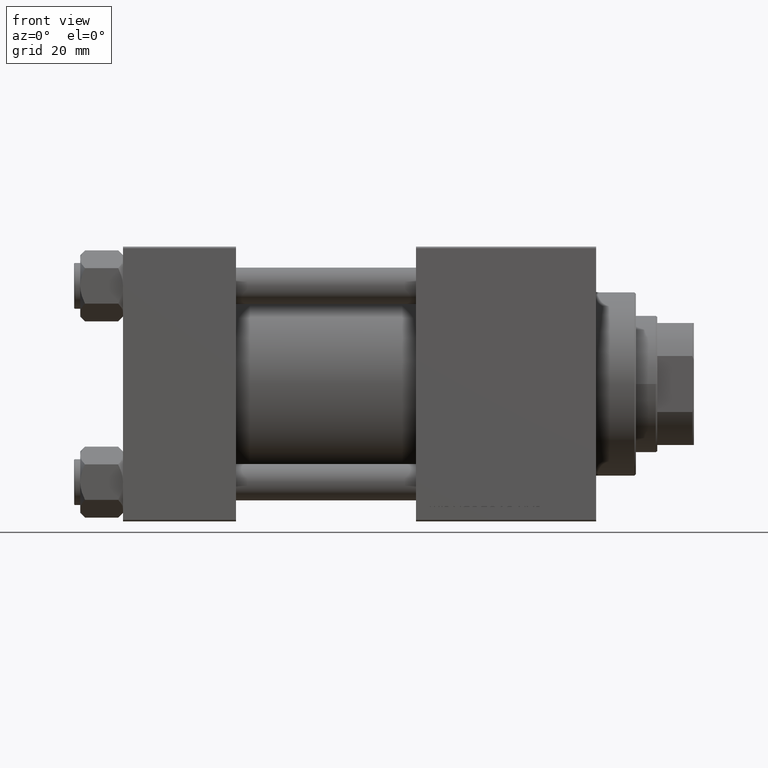
[diagram: clean part render]
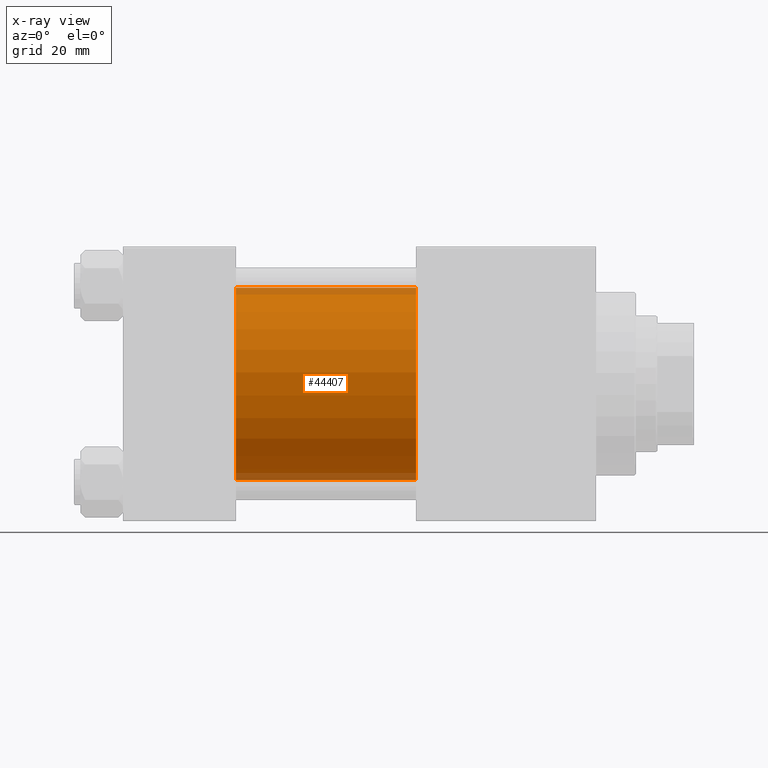
[diagram: x-ray — body ghosted, one internal face saturated and labeled with its STEP entity id]
A machine part, front view, then the same camera in x-ray: the body is ghosted and one INTERNAL B-rep face — a face not visible from any outside direction — is saturated and labeled: STEP entity #44407.
In plain terms, the highlighted cylindrical surface (partial cylindrical patch) has radius 31.5 mm, axis along (-1, -0, -0).
Its self-contained STEP definition (entity closure, byte-faithful):
#58 = AXIS2_PLACEMENT_3D ( 'NONE', #18609, #34579, #18854 ) ;
#284 = VERTEX_POINT ( 'NONE', #4858 ) ;
#475 = LINE ( 'NONE', #27096, #17469 ) ;
#4858 = CARTESIAN_POINT ( 'NONE',  ( 96.00000000000000000, 1.255552203348951850E-15, -31.50000000000000000 ) ) ;
#5022 = AXIS2_PLACEMENT_3D ( 'NONE', #47821, #16410, #36432 ) ;
#6583 = EDGE_LOOP ( 'NONE', ( #29996, #45337, #28346, #26308 ) ) ;
#7437 = CIRCLE ( 'NONE', #5022, 31.50000000000000000 ) ;
#10047 = CARTESIAN_POINT ( 'NONE',  ( 37.00000000000000000, -2.602085213965210642E-15, 31.50000000000000000 ) ) ;
#14457 = CYLINDRICAL_SURFACE ( 'NONE', #47037, 31.50000000000000000 ) ;
#15187 = VERTEX_POINT ( 'NONE', #10047 ) ;
#16410 = DIRECTION ( 'NONE',  ( 1.000000000000000000, 0.000000000000000000, 0.000000000000000000 ) ) ;
#17469 = VECTOR ( 'NONE', #22785, 1000.000000000000000 ) ;
#18609 = CARTESIAN_POINT ( 'NONE',  ( 37.00000000000000000, -2.602085213965210642E-15, 0.000000000000000000 ) ) ;
#18854 = DIRECTION ( 'NONE',  ( 0.000000000000000000, 0.000000000000000000, -1.000000000000000000 ) ) ;
#19972 = VERTEX_POINT ( 'NONE', #33840 ) ;
#22701 = EDGE_CURVE ( 'NONE', #19972, #15187, #475, .T. ) ;
#22785 = DIRECTION ( 'NONE',  ( -1.000000000000000000, -0.000000000000000000, -0.000000000000000000 ) ) ;
#24719 = DIRECTION ( 'NONE',  ( -1.000000000000000000, -0.000000000000000000, -0.000000000000000000 ) ) ;
#25619 = DIRECTION ( 'NONE',  ( 0.000000000000000000, 0.000000000000000000, 1.000000000000000000 ) ) ;
#26308 = ORIENTED_EDGE ( 'NONE', *, *, #22701, .F. ) ;
#27096 = CARTESIAN_POINT ( 'NONE',  ( 96.00000000000000000, -2.602085213965210642E-15, 31.50000000000000000 ) ) ;
#28346 = ORIENTED_EDGE ( 'NONE', *, *, #31995, .F. ) ;
#29996 = ORIENTED_EDGE ( 'NONE', *, *, #46912, .T. ) ;
#31993 = FACE_OUTER_BOUND ( 'NONE', #6583, .T. ) ;
#31995 = EDGE_CURVE ( 'NONE', #15187, #44213, #34064, .T. ) ;
#33840 = CARTESIAN_POINT ( 'NONE',  ( 96.00000000000000000, -2.602085213965210642E-15, 31.50000000000000000 ) ) ;
#34064 = CIRCLE ( 'NONE', #58, 31.50000000000000000 ) ;
#34579 = DIRECTION ( 'NONE',  ( 1.000000000000000000, 0.000000000000000000, 0.000000000000000000 ) ) ;
#35774 = VECTOR ( 'NONE', #24719, 1000.000000000000000 ) ;
#36158 = CARTESIAN_POINT ( 'NONE',  ( 96.00000000000000000, 1.255552203348951850E-15, -31.50000000000000000 ) ) ;
#36432 = DIRECTION ( 'NONE',  ( 0.000000000000000000, 0.000000000000000000, -1.000000000000000000 ) ) ;
#39688 = LINE ( 'NONE', #36158, #35774 ) ;
#44213 = VERTEX_POINT ( 'NONE', #49238 ) ;
#44407 = ADVANCED_FACE ( 'NONE', ( #31993 ), #14457, .F. ) ;
#45123 = CARTESIAN_POINT ( 'NONE',  ( 96.00000000000000000, -2.602085213965210642E-15, 0.000000000000000000 ) ) ;
#45337 = ORIENTED_EDGE ( 'NONE', *, *, #45625, .T. ) ;
#45625 = EDGE_CURVE ( 'NONE', #284, #44213, #39688, .T. ) ;
#46912 = EDGE_CURVE ( 'NONE', #19972, #284, #7437, .T. ) ;
#47037 = AXIS2_PLACEMENT_3D ( 'NONE', #45123, #48433, #25619 ) ;
#47821 = CARTESIAN_POINT ( 'NONE',  ( 96.00000000000000000, -2.602085213965210642E-15, 0.000000000000000000 ) ) ;
#48433 = DIRECTION ( 'NONE',  ( -1.000000000000000000, -0.000000000000000000, -0.000000000000000000 ) ) ;
#49238 = CARTESIAN_POINT ( 'NONE',  ( 37.00000000000000000, 1.255552203348951850E-15, -31.50000000000000000 ) ) ;